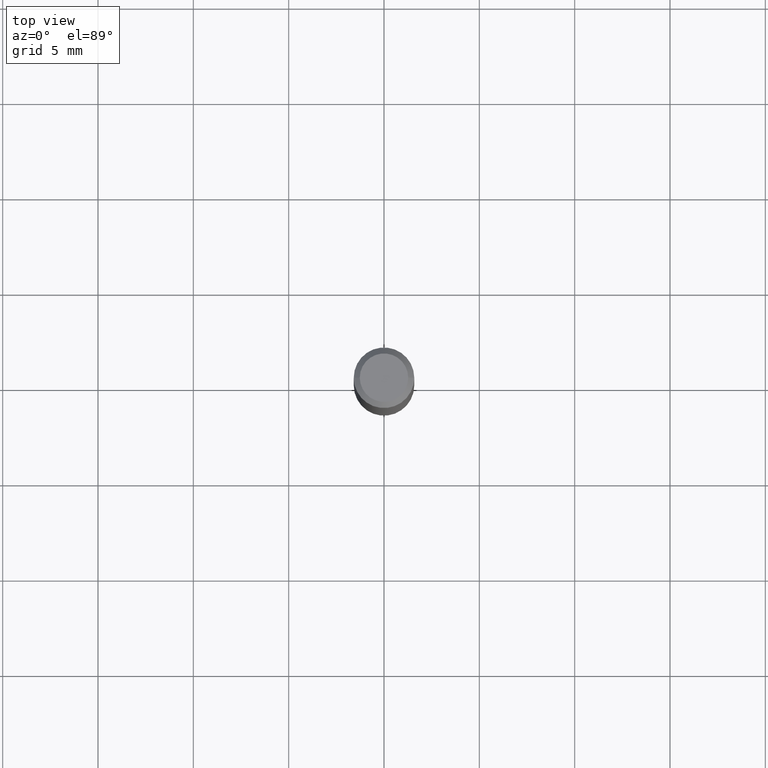
[diagram: clean part render]
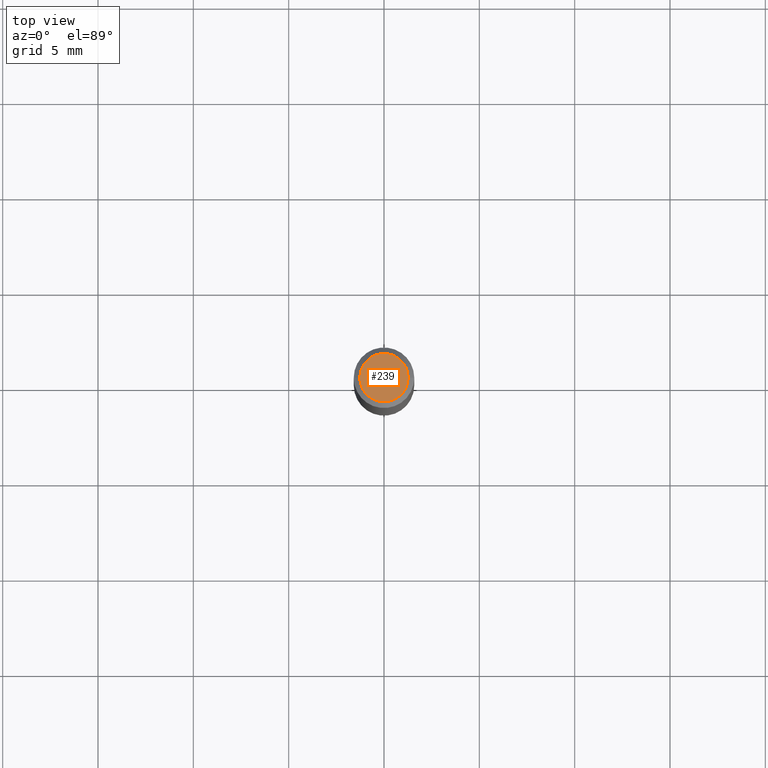
[diagram: same view with one face highlighted and labeled with its STEP entity id]
A machine part, top view. The second image highlights one B-rep face of the part: STEP entity #239.
In plain terms, the highlighted planar face has unit normal (0, -0, -1).
Its self-contained STEP definition (entity closure, byte-faithful):
#19 = CARTESIAN_POINT ( 'NONE',  ( 1.946643104841063088E-47, -2.779290439833033990E-33, -7.960204194457798443E-19 ) ) ;
#33 = EDGE_CURVE ( 'NONE', #323, #309, #264, .T. ) ;
#47 = ORIENTED_EDGE ( 'NONE', *, *, #33, .T. ) ;
#69 = DIRECTION ( 'NONE',  ( 1.000000000000000000, -6.982962677686265922E-15, 4.875957971899673662E-29 ) ) ;
#91 = DIRECTION ( 'NONE',  ( 1.000000000000000000, -6.982962677686265922E-15, 4.875957971899673662E-29 ) ) ;
#133 = DIRECTION ( 'NONE',  ( 2.438088387897960049E-29, -3.491481338843145188E-15, -1.000000000000000000 ) ) ;
#148 = CARTESIAN_POINT ( 'NONE',  ( 3.893286209682126177E-47, -5.558580879666067980E-33, -1.592040838891559689E-18 ) ) ;
#188 = DIRECTION ( 'NONE',  ( -2.445468806185136597E-29, 3.491481338843145583E-15, 1.000000000000000000 ) ) ;
#201 = DIRECTION ( 'NONE',  ( -1.000000000000000000, 6.982962677686265922E-15, -4.876176775795935793E-29 ) ) ;
#239 = ADVANCED_FACE ( 'NONE', ( #426 ), #351, .F. ) ;
#244 = ORIENTED_EDGE ( 'NONE', *, *, #364, .T. ) ;
#259 = CIRCLE ( 'NONE', #360, 0.04999999999999999584 ) ;
#264 = CIRCLE ( 'NONE', #330, 0.04999999999999999584 ) ;
#265 = AXIS2_PLACEMENT_3D ( 'NONE', #19, #133, #201 ) ;
#277 = CARTESIAN_POINT ( 'NONE',  ( -0.04999999999999999584, 3.709698922520826725E-16, -1.592040838894077649E-18 ) ) ;
#283 = CARTESIAN_POINT ( 'NONE',  ( 0.04999999999999999584, -4.077247707424184212E-16, -1.592040838888913461E-18 ) ) ;
#285 = CARTESIAN_POINT ( 'NONE',  ( 3.893286209682126177E-47, -5.558580879666067980E-33, -1.592040838891559689E-18 ) ) ;
#296 = DIRECTION ( 'NONE',  ( -2.445468806185136597E-29, 3.491481338843145583E-15, 1.000000000000000000 ) ) ;
#309 = VERTEX_POINT ( 'NONE', #283 ) ;
#323 = VERTEX_POINT ( 'NONE', #277 ) ;
#330 = AXIS2_PLACEMENT_3D ( 'NONE', #285, #296, #91 ) ;
#351 = PLANE ( 'NONE',  #265 ) ;
#360 = AXIS2_PLACEMENT_3D ( 'NONE', #148, #188, #69 ) ;
#364 = EDGE_CURVE ( 'NONE', #309, #323, #259, .T. ) ;
#426 = FACE_OUTER_BOUND ( 'NONE', #439, .T. ) ;
#439 = EDGE_LOOP ( 'NONE', ( #47, #244 ) ) ;